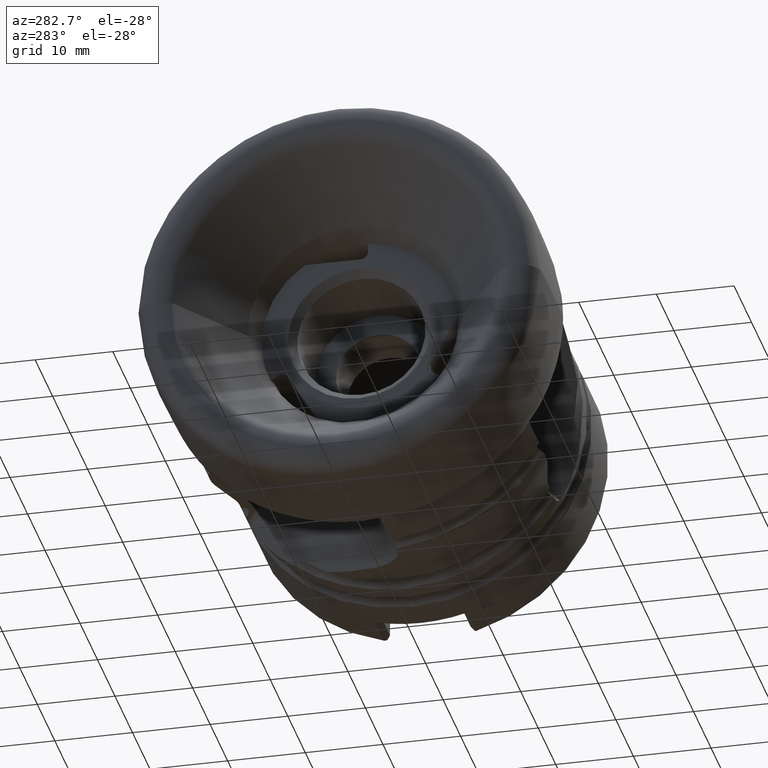
[diagram: clean part render]
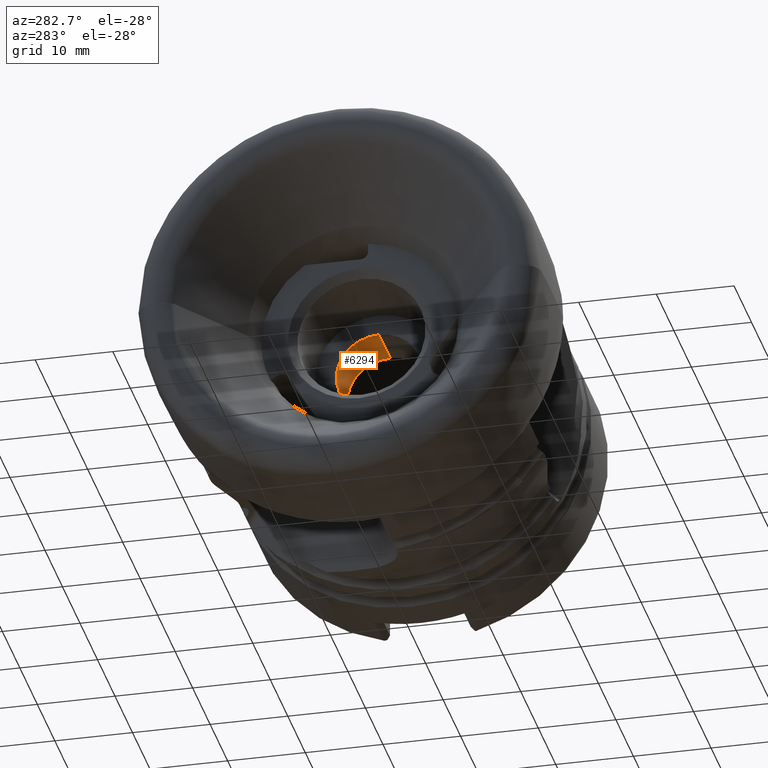
[diagram: same view with one face highlighted and labeled with its STEP entity id]
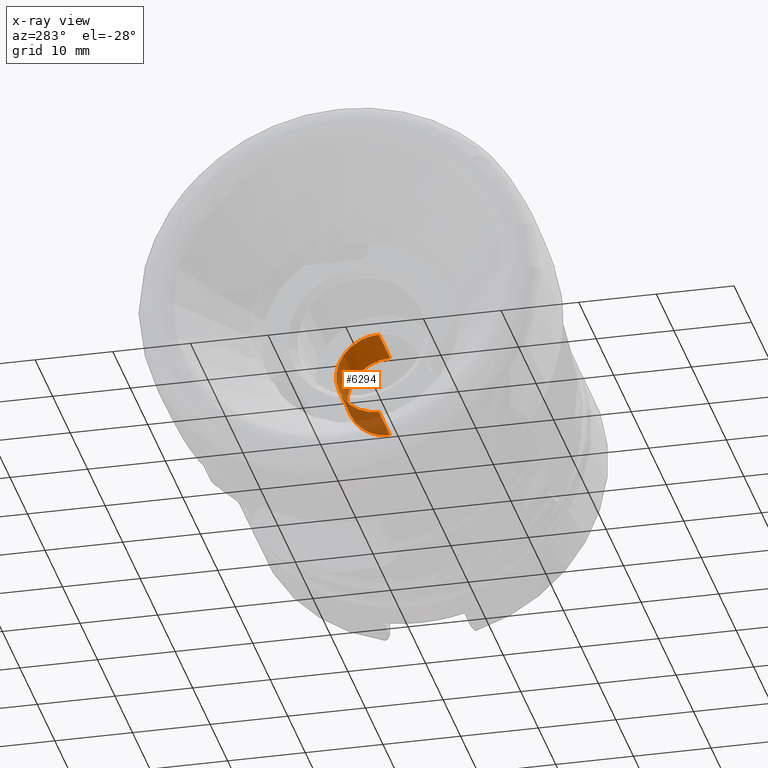
[diagram: x-ray of the same camera — body ghosted, the highlighted face saturated]
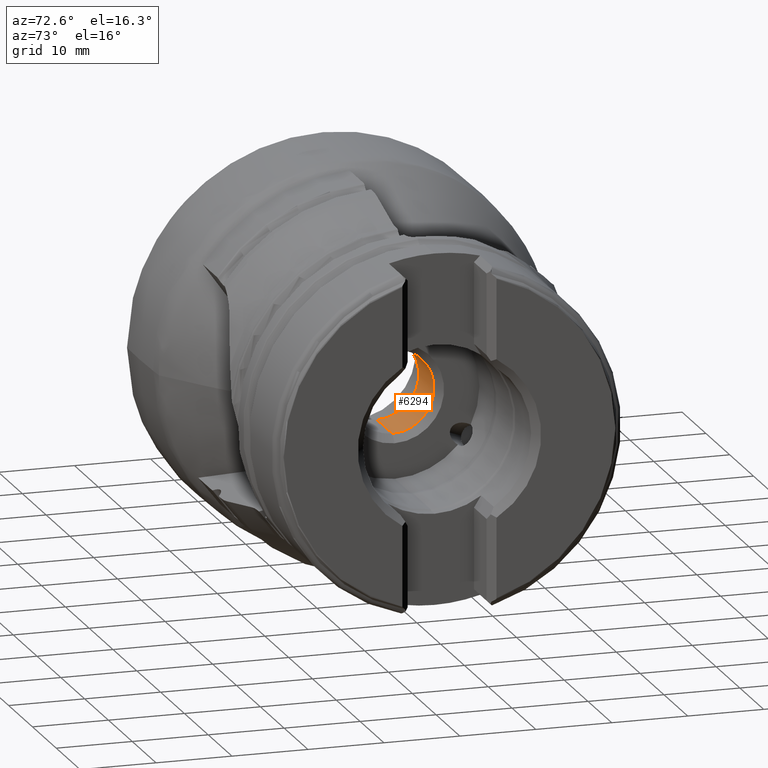
[diagram: same view with one face highlighted and labeled with its STEP entity id]
A machine part, auxiliary view. The second image highlights one B-rep face of the part: STEP entity #6294.
The next image is the same camera in x-ray: the body ghosted, the highlighted face saturated — about 33% of this face is hidden behind the body in this view.
A second angle (auxiliary view) of the same face is appended — the face is thin or edge-on in the first view.
In plain terms, the highlighted cylindrical surface (partial cylindrical patch) has radius 5.5 mm, axis along (-1, -0, -0).
Its self-contained STEP definition (entity closure, byte-faithful):
#308 = EDGE_LOOP ( 'NONE', ( #6799, #6800, #6801, #6802 ) ) ;
#397 = CARTESIAN_POINT ( 'NONE',  ( 29.72300000000000600, 0.0000000000000000000, -5.500000000000000000 ) ) ;
#1053 = CARTESIAN_POINT ( 'NONE',  ( 23.29999999999999700, 6.735557395310441000E-016, -5.499999999999999100 ) ) ;
#1064 = CARTESIAN_POINT ( 'NONE',  ( 23.29999999999999700, 0.0000000000000000000, 5.499999999999999100 ) ) ;
#1193 = CARTESIAN_POINT ( 'NONE',  ( 29.72300000000000600, 7.347880794884123700E-016, 5.500000000000000000 ) ) ;
#1287 = CARTESIAN_POINT ( 'NONE',  ( 23.29999999999999700, 0.0000000000000000000, 0.0000000000000000000 ) ) ;
#1288 = DIRECTION ( 'NONE',  ( -1.000000000000000000, -0.0000000000000000000, -0.0000000000000000000 ) ) ;
#1289 = DIRECTION ( 'NONE',  ( 0.0000000000000000000, 0.0000000000000000000, 1.000000000000000000 ) ) ;
#1752 = EDGE_CURVE ( 'NONE', #3992, #3811, #7177, .T. ) ;
#1754 = EDGE_CURVE ( 'NONE', #3952, #3823, #7182, .T. ) ;
#1938 = EDGE_CURVE ( 'NONE', #3952, #3992, #3278, .T. ) ;
#1950 = EDGE_CURVE ( 'NONE', #3823, #3811, #3305, .T. ) ;
#2686 = CARTESIAN_POINT ( 'NONE',  ( 29.72300000000000600, 0.0000000000000000000, 0.0000000000000000000 ) ) ;
#2687 = DIRECTION ( 'NONE',  ( -1.000000000000000000, -0.0000000000000000000, -0.0000000000000000000 ) ) ;
#2688 = DIRECTION ( 'NONE',  ( 0.0000000000000000000, 0.0000000000000000000, 1.000000000000000000 ) ) ;
#3039 = CARTESIAN_POINT ( 'NONE',  ( 0.0000000000000000000, 0.0000000000000000000, 5.500000000000000000 ) ) ;
#3043 = CARTESIAN_POINT ( 'NONE',  ( 0.0000000000000000000, 6.735557395310442000E-016, -5.500000000000000000 ) ) ;
#3044 = DIRECTION ( 'NONE',  ( -1.000000000000000000, -0.0000000000000000000, -0.0000000000000000000 ) ) ;
#3046 = DIRECTION ( 'NONE',  ( -1.000000000000000000, -0.0000000000000000000, -0.0000000000000000000 ) ) ;
#3278 = CIRCLE ( 'NONE', #6420, 5.500000000000000000 ) ;
#3305 = CIRCLE ( 'NONE', #6424, 5.499999999999999100 ) ;
#3703 = FACE_OUTER_BOUND ( 'NONE', #308, .T. ) ;
#3706 = CYLINDRICAL_SURFACE ( 'NONE', #6611, 5.500000000000000000 ) ;
#3811 = VERTEX_POINT ( 'NONE', #1053 ) ;
#3823 = VERTEX_POINT ( 'NONE', #1064 ) ;
#3952 = VERTEX_POINT ( 'NONE', #1193 ) ;
#3992 = VERTEX_POINT ( 'NONE', #397 ) ;
#4711 = DIRECTION ( 'NONE',  ( 0.0000000000000000000, 0.0000000000000000000, 1.000000000000000000 ) ) ;
#4712 = CARTESIAN_POINT ( 'NONE',  ( 0.0000000000000000000, 0.0000000000000000000, 0.0000000000000000000 ) ) ;
#4713 = DIRECTION ( 'NONE',  ( -1.000000000000000000, -0.0000000000000000000, -0.0000000000000000000 ) ) ;
#6294 = ADVANCED_FACE ( 'NONE', ( #3703 ), #3706, .F. ) ;
#6420 = AXIS2_PLACEMENT_3D ( 'NONE', #2686, #2687, #2688 ) ;
#6424 = AXIS2_PLACEMENT_3D ( 'NONE', #1287, #1288, #1289 ) ;
#6611 = AXIS2_PLACEMENT_3D ( 'NONE', #4712, #4713, #4711 ) ;
#6799 = ORIENTED_EDGE ( 'NONE', *, *, #1752, .F. ) ;
#6800 = ORIENTED_EDGE ( 'NONE', *, *, #1938, .F. ) ;
#6801 = ORIENTED_EDGE ( 'NONE', *, *, #1754, .T. ) ;
#6802 = ORIENTED_EDGE ( 'NONE', *, *, #1950, .T. ) ;
#7177 = LINE ( 'NONE', #3043, #7181 ) ;
#7181 = VECTOR ( 'NONE', #3046, 1000.000000000000000 ) ;
#7182 = LINE ( 'NONE', #3039, #7184 ) ;
#7184 = VECTOR ( 'NONE', #3044, 1000.000000000000000 ) ;